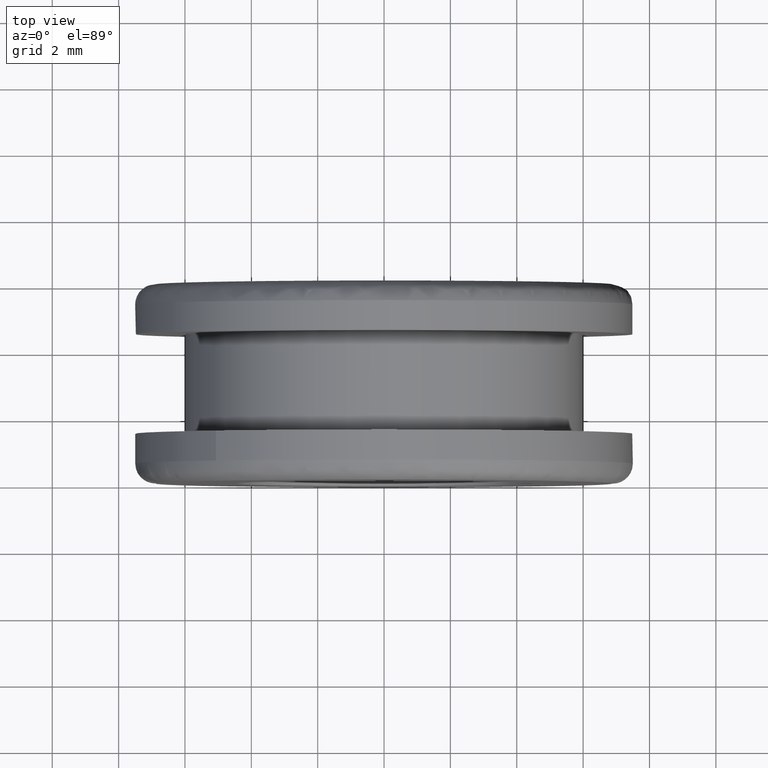
[diagram: clean part render]
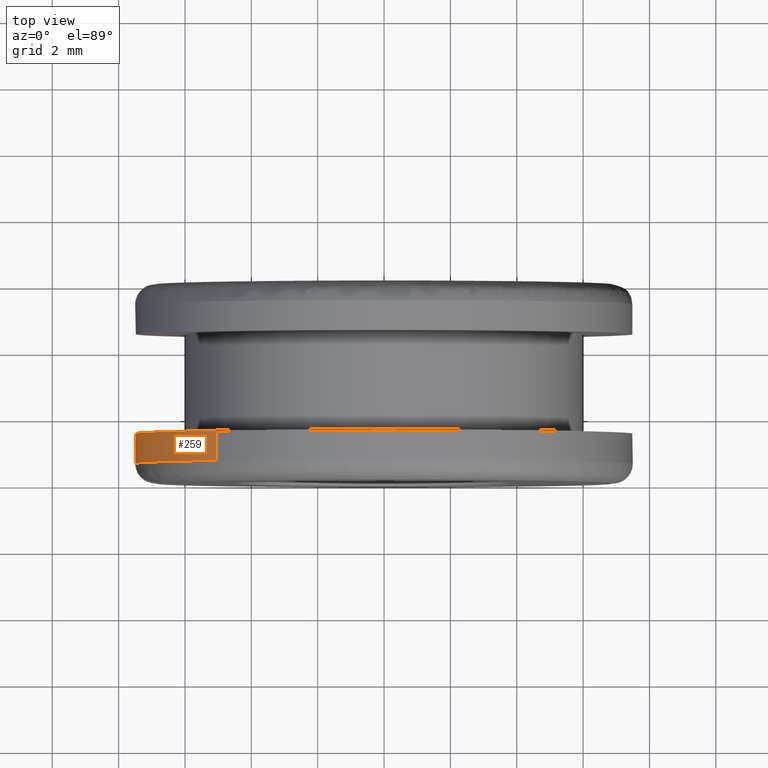
[diagram: same view with one face highlighted and labeled with its STEP entity id]
A machine part, top view. The second image highlights one B-rep face of the part: STEP entity #259.
In plain terms, the highlighted face is a freeform B-spline surface patch.
Its self-contained STEP definition (entity closure, byte-faithful):
#66=CARTESIAN_POINT('',(-4.907547179780115,1.500000000000008,-5.671506032636492));
#67=VERTEX_POINT('',#66);
#100=CARTESIAN_POINT('',(-5.066926260055221,1.500000000000000,5.529580298283284));
#101=VERTEX_POINT('',#100);
#115=CARTESIAN_POINT('',(-5.066926246519454,0.599999999988853,5.529580310686487));
#116=VERTEX_POINT('',#115);
#117=CARTESIAN_POINT('',(-5.066926260055221,1.500000000000000,5.529580298283284));
#118=CARTESIAN_POINT('',(-5.066926246519454,0.599999999988853,5.529580310686487));
#119=QUASI_UNIFORM_CURVE('',1,(#117,#118),.UNSPECIFIED.,.F.,.U.);
#120=EDGE_CURVE('',#101,#116,#119,.T.);
#169=CARTESIAN_POINT('',(-4.907547182765222,0.599999999999965,-5.671506030053482));
#170=VERTEX_POINT('',#169);
#184=CARTESIAN_POINT('',(-4.907547179780115,1.500000000000008,-5.671506032636492));
#185=CARTESIAN_POINT('',(-4.907547182765222,0.599999999999965,-5.671506030053482));
#186=QUASI_UNIFORM_CURVE('',1,(#184,#185),.UNSPECIFIED.,.F.,.U.);
#187=EDGE_CURVE('',#67,#170,#186,.T.);
#192=CARTESIAN_POINT('',(-5.066926557117450,1.522500000001033,5.529580026075928));
#193=CARTESIAN_POINT('',(-10.596506583193378,1.522500000001033,0.462653468958478));
#194=CARTESIAN_POINT('',(-5.529580026075928,1.522500000001033,-5.066926557117450));
#195=CARTESIAN_POINT('',(-5.236074104276847,1.522500000001033,-5.387232064690958));
#196=CARTESIAN_POINT('',(-4.907547427520285,1.522500000001033,-5.671505818267225));
#197=CARTESIAN_POINT('',(-5.066926557117450,0.576937499957637,5.529580026075928));
#198=CARTESIAN_POINT('',(-10.596506583193378,0.576937499957637,0.462653468958478));
#199=CARTESIAN_POINT('',(-5.529580026075928,0.576937499957637,-5.066926557117450));
#200=CARTESIAN_POINT('',(-5.236074104276847,0.576937499957637,-5.387232064690958));
#201=CARTESIAN_POINT('',(-4.907547427520285,0.576937499957637,-5.671505818267225));
#209=(BOUNDED_SURFACE()B_SPLINE_SURFACE(2,1,((#192,#197),(#193,#198),(#194,#199),(#195,#200),(#196,#201)),.UNSPECIFIED.,.F.,.F.,.U.)B_SPLINE_SURFACE_WITH_KNOTS((3,2,3),(2,2),(0.0,12.426406871192849,13.420519420888279),(0.0,1.0),.UNSPECIFIED.)GEOMETRIC_REPRESENTATION_ITEM()RATIONAL_B_SPLINE_SURFACE(((1.0,1.0),(0.707106781186548,0.707106781186548),(1.0,1.0),(0.976568542494924,0.976568542494924),(0.956886118190660,0.956886118190660)))REPRESENTATION_ITEM('')SURFACE());
#210=CARTESIAN_POINT('',(-5.066926260055221,1.500000000000000,5.529580298283285));
#211=CARTESIAN_POINT('',(-7.500000000000002,1.500000000000000,3.300079462615269));
#212=CARTESIAN_POINT('',(-7.500000000000000,1.500000000000000,-1.928755E-016));
#213=CARTESIAN_POINT('',(-7.500000000000000,1.500000000000000,-3.428260000589010));
#214=CARTESIAN_POINT('',(-4.907547179780115,1.500000000000008,-5.671506032636493));
#222=(BOUNDED_CURVE()B_SPLINE_CURVE(2,(#210,#211,#212,#213,#214),.UNSPECIFIED.,.F.,.U.)B_SPLINE_CURVE_WITH_KNOTS((3,2,3),(0.618415192864190,0.750000000000000,0.885882133147832),.UNSPECIFIED.)CURVE()GEOMETRIC_REPRESENTATION_ITEM()RATIONAL_B_SPLINE_CURVE((0.853959782840026,0.845838809164180,1.0,0.840804178572373,0.854663299575205))REPRESENTATION_ITEM(''));
#223=EDGE_CURVE('',#101,#67,#222,.T.);
#224=ORIENTED_EDGE('',*,*,#223,.T.);
#225=ORIENTED_EDGE('',*,*,#187,.T.);
#226=CARTESIAN_POINT('',(-7.497631419624741,0.599999999958695,0.188475715825333));
#227=VERTEX_POINT('',#226);
#228=CARTESIAN_POINT('',(-7.497631419624742,0.599999999958695,0.188475715825333));
#229=CARTESIAN_POINT('',(-7.500000000000000,0.599999999999965,0.094252740925649));
#230=CARTESIAN_POINT('',(-7.500000000000000,0.599999999999965,-1.928755E-016));
#231=CARTESIAN_POINT('',(-7.499999999999999,0.599999999999965,-3.428259995816707));
#232=CARTESIAN_POINT('',(-4.907547182765222,0.599999999999965,-5.671506030053482));
#240=(BOUNDED_CURVE()B_SPLINE_CURVE(2,(#228,#229,#230,#231,#232),.UNSPECIFIED.,.F.,.U.)B_SPLINE_CURVE_WITH_KNOTS((3,2,3),(0.745579891769793,0.750000000000000,0.885882132988790),.UNSPECIFIED.)CURVE()GEOMETRIC_REPRESENTATION_ITEM()RATIONAL_B_SPLINE_CURVE((0.989826157681544,0.994821521091804,1.0,0.840804178758702,0.854663299542762))REPRESENTATION_ITEM(''));
#241=EDGE_CURVE('',#227,#170,#240,.T.);
#242=ORIENTED_EDGE('',*,*,#241,.F.);
#243=CARTESIAN_POINT('',(-5.066926246519454,0.599999999988853,5.529580310686487));
#244=CARTESIAN_POINT('',(-7.417511719664617,0.599999999976685,3.375666050243386));
#245=CARTESIAN_POINT('',(-7.497631419624741,0.599999999958695,0.188475715825333));
#253=(BOUNDED_CURVE()B_SPLINE_CURVE(2,(#243,#244,#245),.UNSPECIFIED.,.F.,.U.)B_SPLINE_CURVE_WITH_KNOTS((3,3),(0.618415192125124,0.745579891769794),.UNSPECIFIED.)CURVE()GEOMETRIC_REPRESENTATION_ITEM()RATIONAL_B_SPLINE_CURVE((0.853959782931252,0.846111602607868,0.989826157681545))REPRESENTATION_ITEM(''));
#254=EDGE_CURVE('',#116,#227,#253,.T.);
#255=ORIENTED_EDGE('',*,*,#254,.F.);
#256=ORIENTED_EDGE('',*,*,#120,.F.);
#257=EDGE_LOOP('',(#224,#225,#242,#255,#256));
#258=FACE_OUTER_BOUND('',#257,.T.);
#259=ADVANCED_FACE('',(#258),#209,.T.);